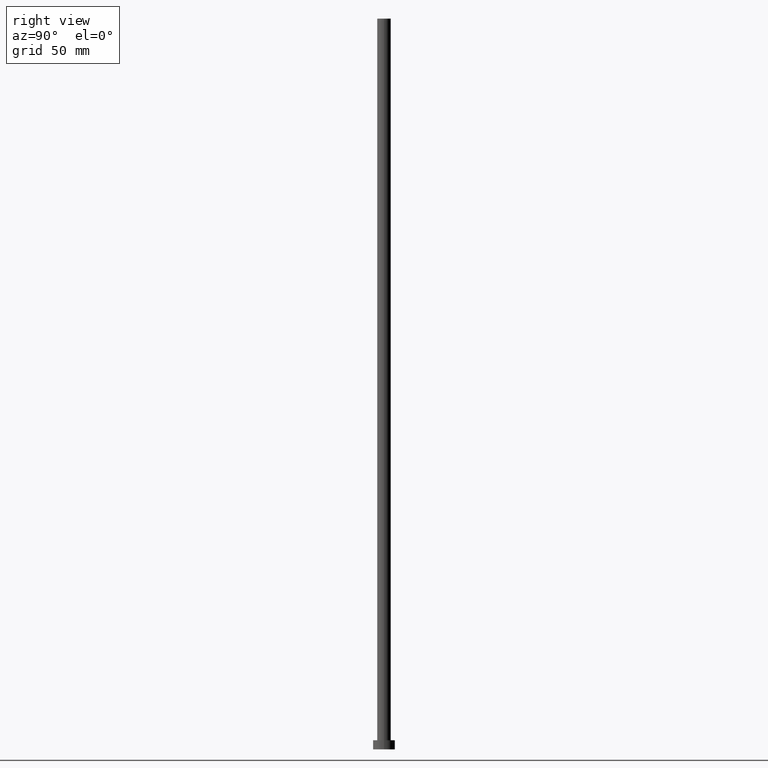
[diagram: clean part render]
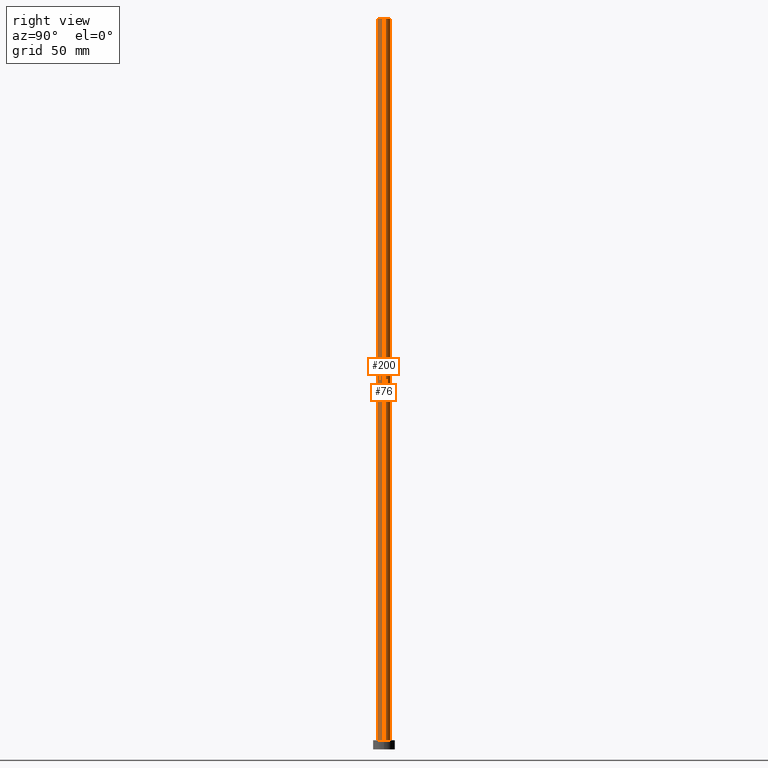
[diagram: same view with one multi-face feature highlighted, each face labeled with its STEP entity id]
A machine part, right view. The highlighted faces form ONE feature: a constant-radius fillet chain: 2 tangent blend faces with common blend radius 3.75 mm. The faces share edges in the B-rep.
Their STEP definitions:
[1] entity #200 (Cylinder):
#6 = CARTESIAN_POINT ( 'NONE',  ( 0.000000000000000000, 0.000000000000000000, 400.0000000000000000 ) ) ;
#14 = ORIENTED_EDGE ( 'NONE', *, *, #215, .T. ) ;
#15 = EDGE_LOOP ( 'NONE', ( #209, #90, #14, #186 ) ) ;
#19 = CIRCLE ( 'NONE', #235, 3.750000000000000000 ) ;
#36 = AXIS2_PLACEMENT_3D ( 'NONE', #141, #44, #158 ) ;
#44 = DIRECTION ( 'NONE',  ( -0.000000000000000000, -0.000000000000000000, -1.000000000000000000 ) ) ;
#46 = DIRECTION ( 'NONE',  ( 0.000000000000000000, 0.000000000000000000, 1.000000000000000000 ) ) ;
#48 = DIRECTION ( 'NONE',  ( 1.000000000000000000, 0.000000000000000000, 0.000000000000000000 ) ) ;
#50 = EDGE_CURVE ( 'NONE', #54, #253, #175, .T. ) ;
#54 = VERTEX_POINT ( 'NONE', #98 ) ;
#60 = VECTOR ( 'NONE', #234, 1000.000000000000000 ) ;
#65 = DIRECTION ( 'NONE',  ( 0.000000000000000000, 0.000000000000000000, 1.000000000000000000 ) ) ;
#90 = ORIENTED_EDGE ( 'NONE', *, *, #168, .F. ) ;
#98 = CARTESIAN_POINT ( 'NONE',  ( 3.750000000000000000, 4.592425496802572986E-16, 400.0000000000000000 ) ) ;
#99 = CARTESIAN_POINT ( 'NONE',  ( 3.750000000000000000, 4.592425496802572986E-16, 5.000000000000000000 ) ) ;
#101 = FACE_OUTER_BOUND ( 'NONE', #15, .T. ) ;
#102 = CARTESIAN_POINT ( 'NONE',  ( -3.750000000000000000, 0.000000000000000000, 5.000000000000000000 ) ) ;
#105 = CIRCLE ( 'NONE', #219, 3.750000000000000000 ) ;
#110 = VERTEX_POINT ( 'NONE', #241 ) ;
#117 = EDGE_CURVE ( 'NONE', #182, #253, #105, .T. ) ;
#125 = VECTOR ( 'NONE', #140, 1000.000000000000000 ) ;
#140 = DIRECTION ( 'NONE',  ( -0.000000000000000000, -0.000000000000000000, -1.000000000000000000 ) ) ;
#141 = CARTESIAN_POINT ( 'NONE',  ( 0.000000000000000000, 0.000000000000000000, 400.0000000000000000 ) ) ;
#143 = CYLINDRICAL_SURFACE ( 'NONE', #36, 3.750000000000000000 ) ;
#154 = CARTESIAN_POINT ( 'NONE',  ( 3.750000000000000000, 4.592425496802572986E-16, 400.0000000000000000 ) ) ;
#158 = DIRECTION ( 'NONE',  ( -1.000000000000000000, 0.000000000000000000, 0.000000000000000000 ) ) ;
#168 = EDGE_CURVE ( 'NONE', #110, #54, #19, .T. ) ;
#175 = LINE ( 'NONE', #154, #60 ) ;
#182 = VERTEX_POINT ( 'NONE', #102 ) ;
#184 = DIRECTION ( 'NONE',  ( 1.000000000000000000, 0.000000000000000000, 0.000000000000000000 ) ) ;
#185 = CARTESIAN_POINT ( 'NONE',  ( -3.750000000000000000, 0.000000000000000000, 400.0000000000000000 ) ) ;
#186 = ORIENTED_EDGE ( 'NONE', *, *, #117, .T. ) ;
#198 = CARTESIAN_POINT ( 'NONE',  ( 0.000000000000000000, 0.000000000000000000, 5.000000000000000000 ) ) ;
#200 = ADVANCED_FACE ( 'NONE', ( #101 ), #143, .T. ) ;
#205 = LINE ( 'NONE', #185, #125 ) ;
#209 = ORIENTED_EDGE ( 'NONE', *, *, #50, .F. ) ;
#215 = EDGE_CURVE ( 'NONE', #110, #182, #205, .T. ) ;
#219 = AXIS2_PLACEMENT_3D ( 'NONE', #198, #46, #184 ) ;
#234 = DIRECTION ( 'NONE',  ( -0.000000000000000000, -0.000000000000000000, -1.000000000000000000 ) ) ;
#235 = AXIS2_PLACEMENT_3D ( 'NONE', #6, #65, #48 ) ;
#241 = CARTESIAN_POINT ( 'NONE',  ( -3.750000000000000000, 0.000000000000000000, 400.0000000000000000 ) ) ;
#253 = VERTEX_POINT ( 'NONE', #99 ) ;
[2] entity #76 (Cylinder):
#8 = FACE_OUTER_BOUND ( 'NONE', #28, .T. ) ;
#11 = ORIENTED_EDGE ( 'NONE', *, *, #215, .F. ) ;
#25 = EDGE_CURVE ( 'NONE', #253, #182, #187, .T. ) ;
#28 = EDGE_LOOP ( 'NONE', ( #244, #124, #58, #11 ) ) ;
#37 = DIRECTION ( 'NONE',  ( 0.000000000000000000, 0.000000000000000000, 1.000000000000000000 ) ) ;
#41 = EDGE_CURVE ( 'NONE', #54, #110, #84, .T. ) ;
#42 = CARTESIAN_POINT ( 'NONE',  ( 0.000000000000000000, 0.000000000000000000, 400.0000000000000000 ) ) ;
#50 = EDGE_CURVE ( 'NONE', #54, #253, #175, .T. ) ;
#54 = VERTEX_POINT ( 'NONE', #98 ) ;
#55 = AXIS2_PLACEMENT_3D ( 'NONE', #42, #224, #79 ) ;
#58 = ORIENTED_EDGE ( 'NONE', *, *, #25, .T. ) ;
#60 = VECTOR ( 'NONE', #234, 1000.000000000000000 ) ;
#74 = DIRECTION ( 'NONE',  ( 1.000000000000000000, 0.000000000000000000, 0.000000000000000000 ) ) ;
#76 = ADVANCED_FACE ( 'NONE', ( #8 ), #86, .T. ) ;
#77 = AXIS2_PLACEMENT_3D ( 'NONE', #94, #93, #74 ) ;
#79 = DIRECTION ( 'NONE',  ( -1.000000000000000000, 0.000000000000000000, 0.000000000000000000 ) ) ;
#84 = CIRCLE ( 'NONE', #180, 3.750000000000000000 ) ;
#86 = CYLINDRICAL_SURFACE ( 'NONE', #55, 3.750000000000000000 ) ;
#93 = DIRECTION ( 'NONE',  ( 0.000000000000000000, 0.000000000000000000, 1.000000000000000000 ) ) ;
#94 = CARTESIAN_POINT ( 'NONE',  ( 0.000000000000000000, 0.000000000000000000, 5.000000000000000000 ) ) ;
#98 = CARTESIAN_POINT ( 'NONE',  ( 3.750000000000000000, 4.592425496802572986E-16, 400.0000000000000000 ) ) ;
#99 = CARTESIAN_POINT ( 'NONE',  ( 3.750000000000000000, 4.592425496802572986E-16, 5.000000000000000000 ) ) ;
#102 = CARTESIAN_POINT ( 'NONE',  ( -3.750000000000000000, 0.000000000000000000, 5.000000000000000000 ) ) ;
#110 = VERTEX_POINT ( 'NONE', #241 ) ;
#111 = DIRECTION ( 'NONE',  ( 1.000000000000000000, 0.000000000000000000, 0.000000000000000000 ) ) ;
#124 = ORIENTED_EDGE ( 'NONE', *, *, #50, .T. ) ;
#125 = VECTOR ( 'NONE', #140, 1000.000000000000000 ) ;
#134 = CARTESIAN_POINT ( 'NONE',  ( 0.000000000000000000, 0.000000000000000000, 400.0000000000000000 ) ) ;
#140 = DIRECTION ( 'NONE',  ( -0.000000000000000000, -0.000000000000000000, -1.000000000000000000 ) ) ;
#154 = CARTESIAN_POINT ( 'NONE',  ( 3.750000000000000000, 4.592425496802572986E-16, 400.0000000000000000 ) ) ;
#175 = LINE ( 'NONE', #154, #60 ) ;
#180 = AXIS2_PLACEMENT_3D ( 'NONE', #134, #37, #111 ) ;
#182 = VERTEX_POINT ( 'NONE', #102 ) ;
#185 = CARTESIAN_POINT ( 'NONE',  ( -3.750000000000000000, 0.000000000000000000, 400.0000000000000000 ) ) ;
#187 = CIRCLE ( 'NONE', #77, 3.750000000000000000 ) ;
#205 = LINE ( 'NONE', #185, #125 ) ;
#215 = EDGE_CURVE ( 'NONE', #110, #182, #205, .T. ) ;
#224 = DIRECTION ( 'NONE',  ( -0.000000000000000000, -0.000000000000000000, -1.000000000000000000 ) ) ;
#234 = DIRECTION ( 'NONE',  ( -0.000000000000000000, -0.000000000000000000, -1.000000000000000000 ) ) ;
#241 = CARTESIAN_POINT ( 'NONE',  ( -3.750000000000000000, 0.000000000000000000, 400.0000000000000000 ) ) ;
#244 = ORIENTED_EDGE ( 'NONE', *, *, #41, .F. ) ;
#253 = VERTEX_POINT ( 'NONE', #99 ) ;